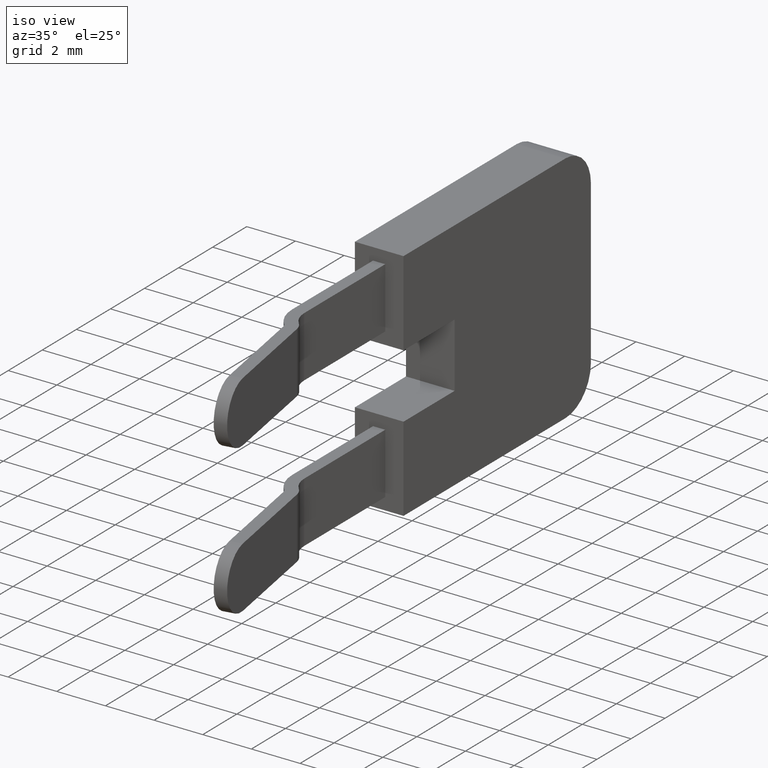
[diagram: clean part render]
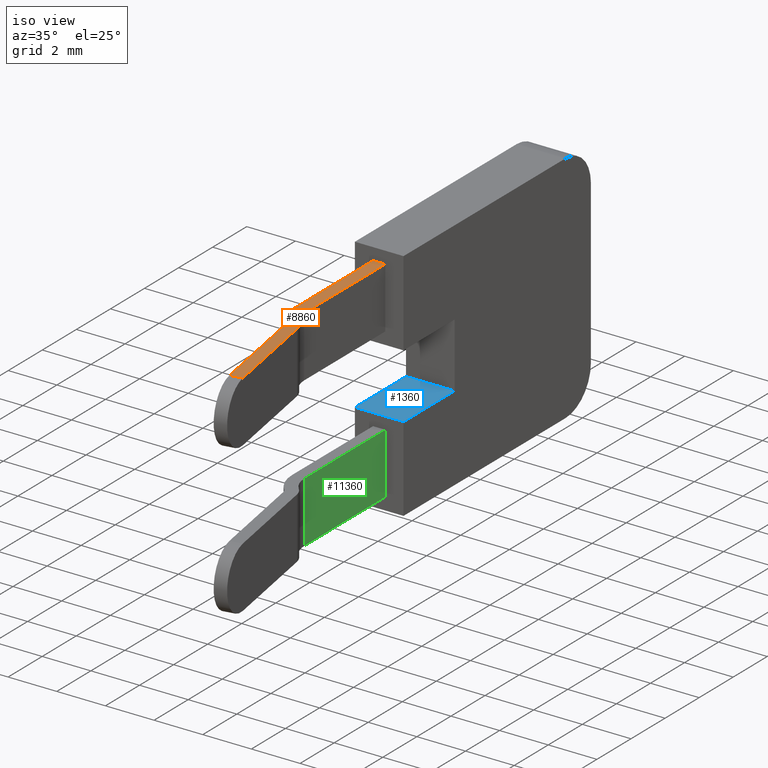
[diagram: same view with three faces highlighted in distinct colors, each labeled with its STEP entity id]
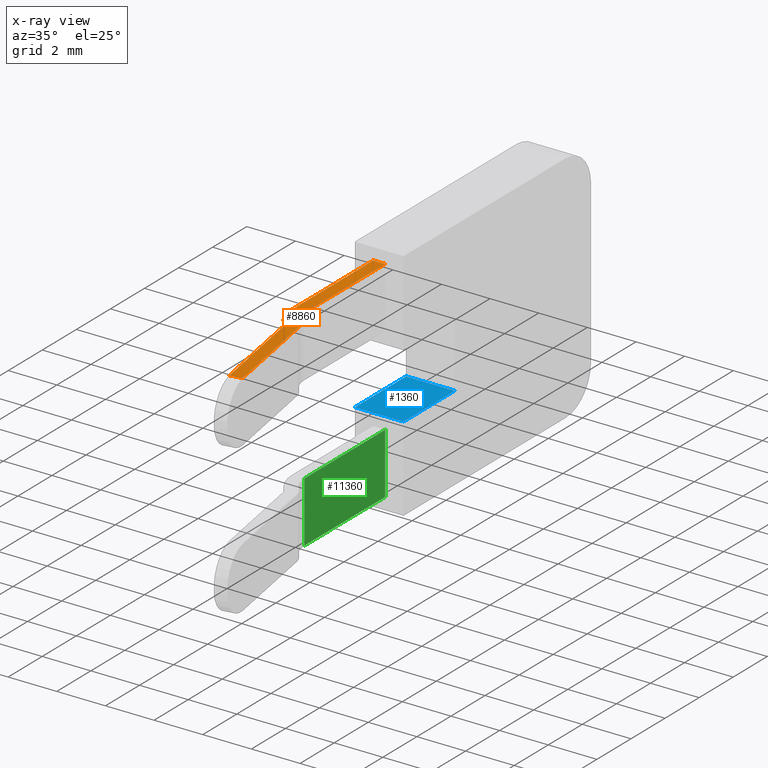
[diagram: x-ray of the same camera — body ghosted, the three highlighted faces saturated]
A machine part, iso view with three faces highlighted in distinct colors.
The next image is the same camera in x-ray (body ghosted, the three faces saturated) — at least one of them is partly hidden behind the body in this view.
Their STEP definitions:

[orange] entity #8860 — the highlighted planar face has unit normal (-0, 0, 1).
#3690=CARTESIAN_POINT('',(-26.1051720133737,-9.04580621180248,
-0.502166000000009));
#3700=VERTEX_POINT('',#3690);
#3870=CARTESIAN_POINT('',(-26.1051720133737,-9.04580621180248,
-0.00216599999981659));
#3880=VERTEX_POINT('',#3870);
#3910=CARTESIAN_POINT('',(-26.1051720133737,-9.04580621180248,0.75));
#3920=DIRECTION('',(0.,0.,-1.));
#3930=VECTOR('',#3920,1.);
#3940=LINE('',#3910,#3930);
#3950=EDGE_CURVE('',#3880,#3700,#3940,.T.);
#4550=CARTESIAN_POINT('',(-26.1051720133723,-0.0954075198330621,
-0.502166000000009));
#4560=DIRECTION('',(-1.614E-13,-1.,0.));
#4570=VECTOR('',#4560,1.);
#4580=LINE('',#4550,#4570);
#4590=CARTESIAN_POINT('',(-26.1051720133745,-13.7958062118023,
-0.502165999999828));
#4600=VERTEX_POINT('',#4590);
#4610=EDGE_CURVE('',#3700,#4600,#4580,.T.);
#5050=CARTESIAN_POINT('',(-26.1051720133745,-13.7958062118023,
-0.00216599999980926));
#5060=VERTEX_POINT('',#5050);
#5090=CARTESIAN_POINT('',(-26.1051720133723,-0.0954075198330613,
-0.00216599999983025));
#5100=DIRECTION('',(-1.614E-13,-1.,1.52788445397746E-15));
#5110=VECTOR('',#5100,1.);
#5120=LINE('',#5090,#5110);
#5130=EDGE_CURVE('',#3880,#5060,#5120,.T.);
#7190=CARTESIAN_POINT('',(-26.1051720133747,-15.0694048647744,
0.0321966853307898));
#7200=VERTEX_POINT('',#7190);
#7230=CARTESIAN_POINT('',(-26.1051720133723,-0.0954075198330653,
-2.60812305563928));
#7240=DIRECTION('',(1.5894797133617E-13,0.984807753012208,
-0.17364817766693));
#7250=VECTOR('',#7240,1.);
#7260=LINE('',#7230,#7250);
#7270=CARTESIAN_POINT('',(-26.1051720133754,-19.314796520537,
0.780773777916329));
#7280=VERTEX_POINT('',#7270);
#7290=EDGE_CURVE('',#7280,#7200,#7260,.T.);
#8000=CARTESIAN_POINT('',(-26.1051720133747,-15.1214993180745,
-0.263245640572873));
#8010=DIRECTION('',(-1.,1.61595616824427E-13,6.03872056969976E-44));
#8020=DIRECTION('',(-1.61595616824427E-13,-1.,1.52788445397746E-15));
#8030=AXIS2_PLACEMENT_3D('',#8000,#8010,#8020);
#8040=CIRCLE('',#8030,0.3);
#8050=CARTESIAN_POINT('',(-26.1051720133747,-14.9121793539262,
-0.0483383289034451));
#8060=VERTEX_POINT('',#8050);
#8070=EDGE_CURVE('',#7200,#8060,#8040,.T.);
#8350=CARTESIAN_POINT('',(-26.1051720133739,-10.2338118942179,
-0.284590419063765));
#8360=DIRECTION('',(-1.,1.614E-13,0.));
#8370=DIRECTION('',(2.604996E-26,1.614E-13,1.));
#8380=AXIS2_PLACEMENT_3D('',#8350,#8360,#8370);
#8390=PLANE('',#8380);
#8400=ORIENTED_EDGE('',*,*,#7290,.F.);
#8410=ORIENTED_EDGE('',*,*,#8070,.F.);
#8420=CARTESIAN_POINT('',(-26.1051720133745,-13.7958062118023,
1.09783400000017));
#8430=DIRECTION('',(-1.,1.61595616824427E-13,6.03872056969976E-44));
#8440=DIRECTION('',(1.61595616824427E-13,1.,0.));
#8450=AXIS2_PLACEMENT_3D('',#8420,#8430,#8440);
#8460=CIRCLE('',#8450,1.6);
#8470=EDGE_CURVE('',#4600,#8060,#8460,.T.);
#8480=ORIENTED_EDGE('',*,*,#8470,.T.);
#8490=ORIENTED_EDGE('',*,*,#4610,.T.);
#8500=ORIENTED_EDGE('',*,*,#3950,.T.);
#8510=ORIENTED_EDGE('',*,*,#5130,.F.);
#8520=CARTESIAN_POINT('',(-26.1051720133745,-13.7958062118023,
1.09783400000017));
#8530=DIRECTION('',(-1.,1.61595616824427E-13,6.03872056969976E-44));
#8540=DIRECTION('',(1.61595616824427E-13,1.,0.));
#8550=AXIS2_PLACEMENT_3D('',#8520,#8530,#8540);
#8560=CIRCLE('',#8550,1.1);
#8570=CARTESIAN_POINT('',(-26.1051720133746,-14.5633127470125,
0.309840523878935));
#8580=VERTEX_POINT('',#8570);
#8590=EDGE_CURVE('',#5060,#8580,#8560,.T.);
#8600=ORIENTED_EDGE('',*,*,#8590,.F.);
#8610=CARTESIAN_POINT('',(-26.1051720133747,-15.1214993180745,
-0.263245640572872));
#8620=DIRECTION('',(-1.,1.61595616824427E-13,6.03872056969976E-44));
#8630=DIRECTION('',(1.61595616824427E-13,1.,0.));
#8640=AXIS2_PLACEMENT_3D('',#8610,#8620,#8630);
#8650=CIRCLE('',#8640,0.8);
#8660=CARTESIAN_POINT('',(-26.1051720133747,-14.9825807759409,
0.524600561836894));
#8670=VERTEX_POINT('',#8660);
#8680=EDGE_CURVE('',#8670,#8580,#8650,.T.);
#8690=ORIENTED_EDGE('',*,*,#8680,.T.);
#8700=CARTESIAN_POINT('',(-26.1051720133723,-0.0954075198330645,
-2.10040974969641));
#8710=DIRECTION('',(1.5894797133617E-13,0.984807753012208,
-0.17364817766693));
#8720=VECTOR('',#8710,1.);
#8730=LINE('',#8700,#8720);
#8740=CARTESIAN_POINT('',(-26.1051720133754,-19.2279724317036,
1.27317765442243));
#8750=VERTEX_POINT('',#8740);
#8760=EDGE_CURVE('',#8750,#8670,#8730,.T.);
#8770=ORIENTED_EDGE('',*,*,#8760,.T.);
#8780=CARTESIAN_POINT('',(-26.1051720133754,-19.5410134180078,
-0.5021659999998));
#8790=DIRECTION('',(2.80607843805259E-14,0.173648177666934,
0.984807753012208));
#8800=VECTOR('',#8790,1.);
#8810=LINE('',#8780,#8800);
#8820=EDGE_CURVE('',#7280,#8750,#8810,.T.);
#8830=ORIENTED_EDGE('',*,*,#8820,.T.);
#8840=EDGE_LOOP('',(#8830,#8770,#8690,#8600,#8510,#8500,#8490,#8480,
#8410,#8400));
#8850=FACE_OUTER_BOUND('',#8840,.T.);
#8860=ADVANCED_FACE('',(#8850),#8390,.T.);

[blue] entity #1360 — the highlighted planar face has unit normal (-0, 0, 1).
#970=CARTESIAN_POINT('',(-20.4551720133759,-5.731938,0.75));
#980=DIRECTION('',(-1.,0.,0.));
#990=DIRECTION('',(0.,1.,0.));
#1000=AXIS2_PLACEMENT_3D('',#970,#980,#990);
#1010=PLANE('',#1000);
#1020=CARTESIAN_POINT('',(-20.4551720133759,0.,-1.25));
#1030=DIRECTION('',(0.,-1.,0.));
#1040=VECTOR('',#1030,1.);
#1050=LINE('',#1020,#1040);
#1060=CARTESIAN_POINT('',(-20.4551720133759,-6.04580621180248,-1.25));
#1070=VERTEX_POINT('',#1060);
#1080=CARTESIAN_POINT('',(-20.4551720133759,-9.04580621180248,-1.25));
#1090=VERTEX_POINT('',#1080);
#1100=EDGE_CURVE('',#1070,#1090,#1050,.T.);
#1110=ORIENTED_EDGE('',*,*,#1100,.T.);
#1120=CARTESIAN_POINT('',(-20.4551720133759,-6.04580621180248,0.75));
#1130=DIRECTION('',(0.,0.,-1.));
#1140=VECTOR('',#1130,1.);
#1150=LINE('',#1120,#1140);
#1160=CARTESIAN_POINT('',(-20.4551720133759,-6.04580621180248,0.75));
#1170=VERTEX_POINT('',#1160);
#1180=EDGE_CURVE('',#1170,#1070,#1150,.T.);
#1190=ORIENTED_EDGE('',*,*,#1180,.T.);
#1200=CARTESIAN_POINT('',(-20.4551720133759,0.,0.75));
#1210=DIRECTION('',(0.,-1.,0.));
#1220=VECTOR('',#1210,1.);
#1230=LINE('',#1200,#1220);
#1240=CARTESIAN_POINT('',(-20.4551720133759,-9.04580621180248,0.75));
#1250=VERTEX_POINT('',#1240);
#1260=EDGE_CURVE('',#1170,#1250,#1230,.T.);
#1270=ORIENTED_EDGE('',*,*,#1260,.F.);
#1280=CARTESIAN_POINT('',(-20.4551720133759,-9.04580621180248,0.75));
#1290=DIRECTION('',(0.,0.,1.));
#1300=VECTOR('',#1290,1.);
#1310=LINE('',#1280,#1300);
#1320=EDGE_CURVE('',#1090,#1250,#1310,.T.);
#1330=ORIENTED_EDGE('',*,*,#1320,.T.);
#1340=EDGE_LOOP('',(#1330,#1270,#1190,#1110));
#1350=FACE_OUTER_BOUND('',#1340,.T.);
#1360=ADVANCED_FACE('',(#1350),#1010,.T.);

[green] entity #11360 — the highlighted planar face has unit normal (-1, -0, -0).
#6360=CARTESIAN_POINT('',(-17.4551720133745,-13.7958062118037,
-0.00216599999982836));
#6370=VERTEX_POINT('',#6360);
#6400=CARTESIAN_POINT('',(-17.4551720133723,-0.0954075198344574,
-0.00216599999983025));
#6410=DIRECTION('',(-1.614E-13,-1.,1.52788445397746E-15));
#6420=VECTOR('',#6410,1.);
#6430=LINE('',#6400,#6420);
#6440=CARTESIAN_POINT('',(-17.4551720133737,-9.04580621180248,
-0.00216599999981659));
#6450=VERTEX_POINT('',#6440);
#6460=EDGE_CURVE('',#6450,#6370,#6430,.T.);
#6700=CARTESIAN_POINT('',(0.,-9.04580621180248,-0.00216599999981659));
#6710=DIRECTION('',(1.,0.,-2.46600550871962E-28));
#6720=VECTOR('',#6710,1.);
#6730=LINE('',#6700,#6720);
#6740=CARTESIAN_POINT('',(-19.9551720133737,-9.04580621180248,
-0.00216599999981659));
#6750=VERTEX_POINT('',#6740);
#6760=EDGE_CURVE('',#6750,#6450,#6730,.T.);
#11130=CARTESIAN_POINT('',(-16.3363130267448,-0.095407519834638,
-0.00216599999983025));
#11140=DIRECTION('',(-2.46600550871962E-28,-1.52788445397746E-15,-1.));
#11150=DIRECTION('',(-1.614E-13,-1.,1.52788445397746E-15));
#11160=AXIS2_PLACEMENT_3D('',#11130,#11140,#11150);
#11170=PLANE('',#11160);
#11180=ORIENTED_EDGE('',*,*,#6760,.F.);
#11190=ORIENTED_EDGE('',*,*,#6460,.F.);
#11200=CARTESIAN_POINT('',(-19.9551720133745,-13.7958062118033,
-0.00216599999982836));
#11210=DIRECTION('',(1.,-1.61595616824427E-13,-6.03872056969976E-44));
#11220=VECTOR('',#11210,1.);
#11230=LINE('',#11200,#11220);
#11240=CARTESIAN_POINT('',(-19.9551720133745,-13.7958062118033,
-0.00216599999982836));
#11250=VERTEX_POINT('',#11240);
#11260=EDGE_CURVE('',#11250,#6370,#11230,.T.);
#11270=ORIENTED_EDGE('',*,*,#11260,.T.);
#11280=CARTESIAN_POINT('',(-19.9551720133723,-0.0954075198340539,
-0.00216599999983025));
#11290=DIRECTION('',(-1.614E-13,-1.,1.52788445397746E-15));
#11300=VECTOR('',#11290,1.);
#11310=LINE('',#11280,#11300);
#11320=EDGE_CURVE('',#6750,#11250,#11310,.T.);
#11330=ORIENTED_EDGE('',*,*,#11320,.T.);
#11340=EDGE_LOOP('',(#11330,#11270,#11190,#11180));
#11350=FACE_OUTER_BOUND('',#11340,.T.);
#11360=ADVANCED_FACE('',(#11350),#11170,.F.);